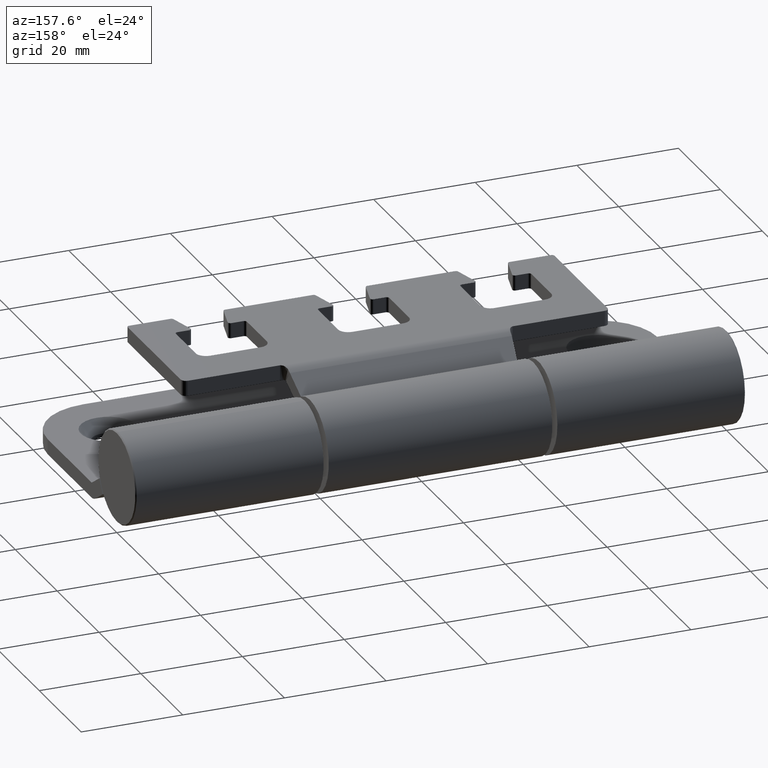
[diagram: clean part render]
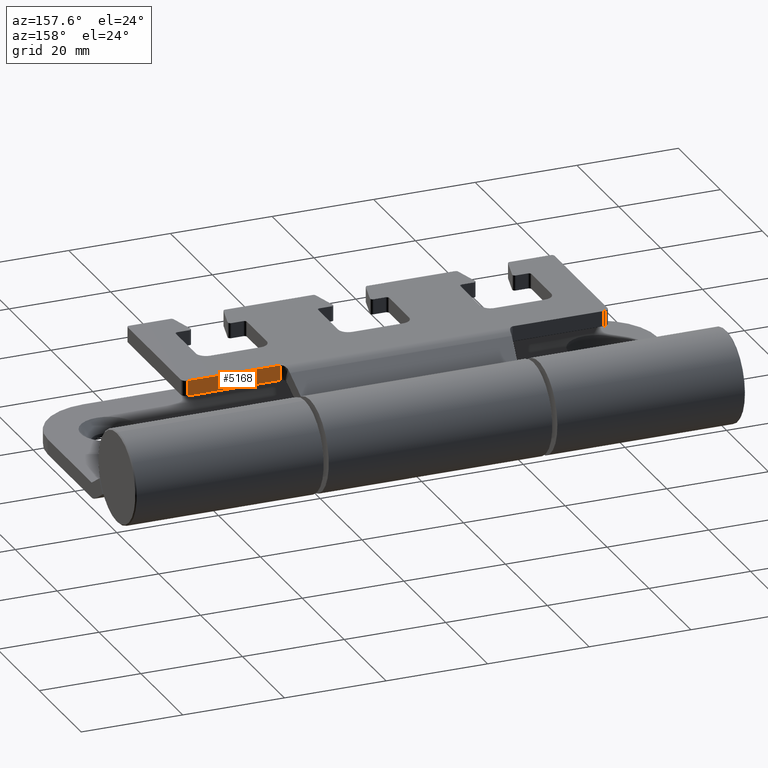
[diagram: same view with one face highlighted and labeled with its STEP entity id]
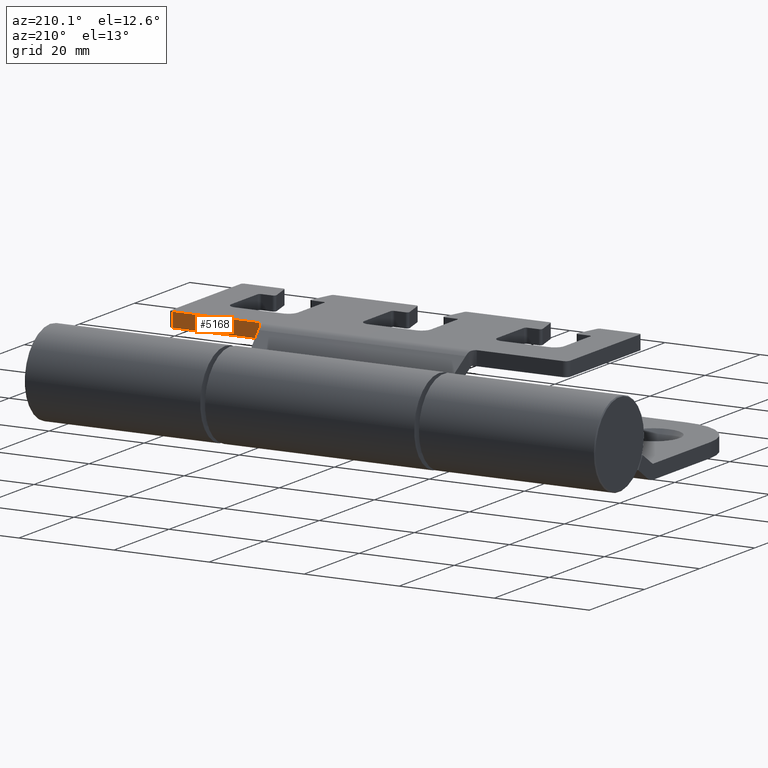
[diagram: same view with one face highlighted and labeled with its STEP entity id]
A machine part, auxiliary view. The second image highlights one B-rep face of the part: STEP entity #5168.
A second angle (auxiliary view) of the same face is appended — the face is thin or edge-on in the first view.
In plain terms, the highlighted planar face has unit normal (-0, -1, -0).
Its self-contained STEP definition (entity closure, byte-faithful):
#389 = DIRECTION ( 'NONE',  ( 1.665334536937731900E-016, -1.000000000000000000, 1.035379938102578000E-030 ) ) ;
#864 = FACE_OUTER_BOUND ( 'NONE', #8309, .T. ) ;
#1206 = EDGE_CURVE ( 'NONE', #12873, #7466, #2781, .T. ) ;
#1956 = LINE ( 'NONE', #8404, #5643 ) ;
#2390 = ORIENTED_EDGE ( 'NONE', *, *, #4658, .T. ) ;
#2781 = LINE ( 'NONE', #6693, #13577 ) ;
#3261 = VERTEX_POINT ( 'NONE', #9338 ) ;
#3817 = CARTESIAN_POINT ( 'NONE',  ( -12.18030679136777100, -11.50000000000000000, -42.00000000000000000 ) ) ;
#4071 = B_SPLINE_CURVE_WITH_KNOTS ( 'NONE', 3,
 ( #7124, #10367, #12593, #11545 ),
 .UNSPECIFIED., .F., .F.,
 ( 4, 4 ),
 ( 0.0000000000000000000, 1.000000000000000000 ),
 .UNSPECIFIED. ) ;
#4658 = EDGE_CURVE ( 'NONE', #11997, #12873, #4071, .T. ) ;
#5081 = CARTESIAN_POINT ( 'NONE',  ( -12.18030679136777100, -11.00000000000000000, -40.99999999999997200 ) ) ;
#5150 = VECTOR ( 'NONE', #10586, 1000.000000000000000 ) ;
#5168 = ADVANCED_FACE ( 'NONE', ( #864 ), #12763, .F. ) ;
#5635 = AXIS2_PLACEMENT_3D ( 'NONE', #3817, #10579, #389 ) ;
#5643 = VECTOR ( 'NONE', #10767, 1000.000000000000000 ) ;
#5857 = EDGE_CURVE ( 'NONE', #3261, #11997, #10562, .T. ) ;
#6693 = CARTESIAN_POINT ( 'NONE',  ( -12.18030679136777100, -11.00000000000000400, 42.00000000000000000 ) ) ;
#7124 = CARTESIAN_POINT ( 'NONE',  ( -12.18030679136777500, -7.999999999999996400, -22.89200058304435400 ) ) ;
#7466 = VERTEX_POINT ( 'NONE', #5081 ) ;
#8309 = EDGE_LOOP ( 'NONE', ( #9555, #2390, #13358, #8865 ) ) ;
#8404 = CARTESIAN_POINT ( 'NONE',  ( -12.18030679136777100, -11.50000000000000000, -41.00000000000000000 ) ) ;
#8820 = DIRECTION ( 'NONE',  ( 3.328006943901139200E-031, 9.860761315262649300E-031, -1.000000000000000000 ) ) ;
#8865 = ORIENTED_EDGE ( 'NONE', *, *, #9119, .T. ) ;
#9119 = EDGE_CURVE ( 'NONE', #7466, #3261, #1956, .T. ) ;
#9338 = CARTESIAN_POINT ( 'NONE',  ( -12.18030679136777500, -7.999999999999996400, -41.00000000000000000 ) ) ;
#9555 = ORIENTED_EDGE ( 'NONE', *, *, #5857, .T. ) ;
#10367 = CARTESIAN_POINT ( 'NONE',  ( -12.18030679136776900, -9.000000000000001800, -22.89200058304434600 ) ) ;
#10562 = LINE ( 'NONE', #13835, #5150 ) ;
#10579 = DIRECTION ( 'NONE',  ( -1.000000000000000000, -1.665334536937731900E-016, 8.673617379884065100E-017 ) ) ;
#10586 = DIRECTION ( 'NONE',  ( 8.673617379884002200E-017, -1.035379938102578000E-030, 1.000000000000000000 ) ) ;
#10767 = DIRECTION ( 'NONE',  ( -1.665334536937731900E-016, 1.000000000000000000, -1.035379938102578000E-030 ) ) ;
#10809 = CARTESIAN_POINT ( 'NONE',  ( -12.18030679136777500, -7.999999999999996400, -22.89200058304435400 ) ) ;
#11392 = CARTESIAN_POINT ( 'NONE',  ( -12.18030679136777100, -11.00000000000000000, -22.89199802843977200 ) ) ;
#11545 = CARTESIAN_POINT ( 'NONE',  ( -12.18030679136777100, -11.00000000000000000, -22.89199802843977200 ) ) ;
#11997 = VERTEX_POINT ( 'NONE', #10809 ) ;
#12593 = CARTESIAN_POINT ( 'NONE',  ( -12.18030679136776900, -10.00000000000000000, -22.89200058304434600 ) ) ;
#12763 = PLANE ( 'NONE',  #5635 ) ;
#12873 = VERTEX_POINT ( 'NONE', #11392 ) ;
#13358 = ORIENTED_EDGE ( 'NONE', *, *, #1206, .T. ) ;
#13577 = VECTOR ( 'NONE', #8820, 1000.000000000000000 ) ;
#13835 = CARTESIAN_POINT ( 'NONE',  ( -12.18030679136777500, -7.999999999999996400, -42.00000000000000000 ) ) ;